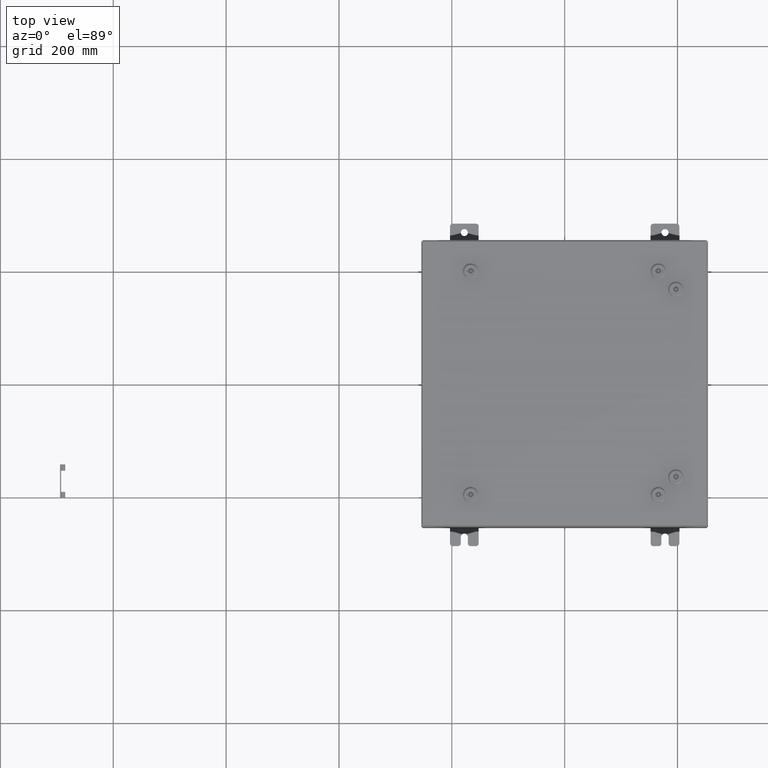
[diagram: clean part render]
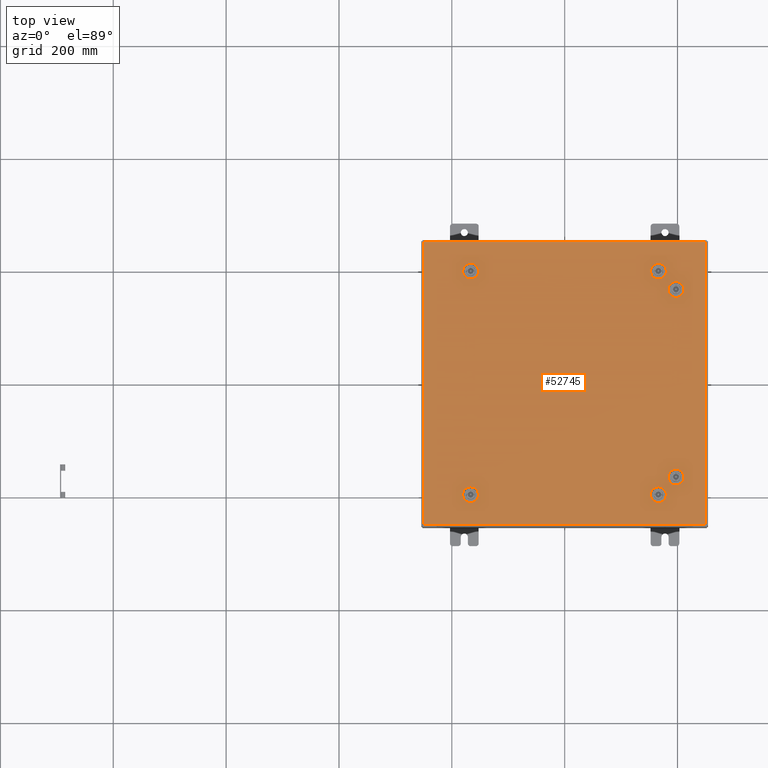
[diagram: same view with one face highlighted and labeled with its STEP entity id]
A machine part, top view. The second image highlights one B-rep face of the part: STEP entity #52745.
In plain terms, the highlighted planar face has unit normal (0, 0, -1).
Its self-contained STEP definition (entity closure, byte-faithful):
#550 = EDGE_LOOP ( 'NONE', ( #18528, #39874, #667, #50809, #45759 ) ) ;
#577 = EDGE_CURVE ( 'NONE', #19614, #15873, #11286, .T. ) ;
#667 = ORIENTED_EDGE ( 'NONE', *, *, #61241, .F. ) ;
#840 = CARTESIAN_POINT ( 'NONE',  ( 9.849799999999994800, 9.849799999999996600, -2.048885995248197400E-016 ) ) ;
#983 = ORIENTED_EDGE ( 'NONE', *, *, #1788, .F. ) ;
#1079 = DIRECTION ( 'NONE',  ( 1.000000000000000000, 1.369674334534793800E-014, 9.732121487607470400E-029 ) ) ;
#1146 = VECTOR ( 'NONE', #22110, 39.37007874015748100 ) ;
#1154 = CARTESIAN_POINT ( 'NONE',  ( 7.392800000000011800, 6.761952375267901200, 0.0000000000000000000 ) ) ;
#1192 = DIRECTION ( 'NONE',  ( 6.982962677686266700E-015, -0.0000000000000000000, 1.000000000000000000 ) ) ;
#1392 = DIRECTION ( 'NONE',  ( 1.000000000000000000, 0.0000000000000000000, 0.0000000000000000000 ) ) ;
#1431 = EDGE_LOOP ( 'NONE', ( #12379, #8941, #28252, #18994, #23804 ) ) ;
#1457 = CARTESIAN_POINT ( 'NONE',  ( 8.182800000000000300, 6.761952375267896700, 0.0000000000000000000 ) ) ;
#1596 = EDGE_CURVE ( 'NONE', #15831, #26861, #12755, .T. ) ;
#1742 = DIRECTION ( 'NONE',  ( 1.000000000000000000, 0.0000000000000000000, 6.982962677686261200E-015 ) ) ;
#1750 = DIRECTION ( 'NONE',  ( -0.0000000000000000000, -6.982962677686266700E-015, 1.000000000000000000 ) ) ;
#1788 = EDGE_CURVE ( 'NONE', #17818, #15868, #8171, .T. ) ;
#1838 = LINE ( 'NONE', #60502, #50990 ) ;
#2163 = DIRECTION ( 'NONE',  ( -1.000000000000000000, -1.369674334534793800E-014, 6.982962677686269100E-015 ) ) ;
#2363 = DIRECTION ( 'NONE',  ( -8.218046007208852600E-015, 1.000000000000000000, -0.0000000000000000000 ) ) ;
#2509 = DIRECTION ( 'NONE',  ( -8.218046007208762600E-015, -1.000000000000000000, 0.0000000000000000000 ) ) ;
#2687 = CIRCLE ( 'NONE', #15769, 0.4424999999999983400 ) ;
#2768 = DIRECTION ( 'NONE',  ( -0.0000000000000000000, -6.982962677686266700E-015, 1.000000000000000000 ) ) ;
#2774 = CARTESIAN_POINT ( 'NONE',  ( -6.119999999999991200, -7.787799999999993600, -4.963978678686834100E-014 ) ) ;
#3140 = CARTESIAN_POINT ( 'NONE',  ( 6.761952375267871900, 7.392799999999994000, -2.777230659996697100E-014 ) ) ;
#3244 = VECTOR ( 'NONE', #1079, 39.37007874015748100 ) ;
#3359 = CIRCLE ( 'NONE', #46096, 0.4424999999999983400 ) ;
#3536 = AXIS2_PLACEMENT_3D ( 'NONE', #32168, #2768, #37117 ) ;
#3818 = CARTESIAN_POINT ( 'NONE',  ( 6.562499999999986700, -7.787799999999989200, -2.326024867937287700E-014 ) ) ;
#4097 = DIRECTION ( 'NONE',  ( 0.0000000000000000000, 1.000000000000000000, 6.982962677686269100E-015 ) ) ;
#4501 = DIRECTION ( 'NONE',  ( 0.0000000000000000000, 0.0000000000000000000, 1.000000000000000000 ) ) ;
#4707 = VERTEX_POINT ( 'NONE', #21259 ) ;
#4712 = DIRECTION ( 'NONE',  ( 1.000000000000000000, 0.0000000000000000000, 0.0000000000000000000 ) ) ;
#5268 = VECTOR ( 'NONE', #50499, 39.37007874015748100 ) ;
#6047 = DIRECTION ( 'NONE',  ( 0.0000000000000000000, 1.000000000000000000, 0.0000000000000000000 ) ) ;
#6318 = CIRCLE ( 'NONE', #45430, 0.4424999999999972800 ) ;
#6454 = CARTESIAN_POINT ( 'NONE',  ( 7.787800000000006100, -6.562500000000010700, -2.429631085186127400E-013 ) ) ;
#6600 = CARTESIAN_POINT ( 'NONE',  ( -6.363047624732095300, 8.182799999999980800, 0.0000000000000000000 ) ) ;
#7836 = FACE_BOUND ( 'NONE', #34544, .T. ) ;
#7850 = ORIENTED_EDGE ( 'NONE', *, *, #19387, .F. ) ;
#8067 = VERTEX_POINT ( 'NONE', #1154 ) ;
#8137 = LINE ( 'NONE', #61414, #45758 ) ;
#8171 = LINE ( 'NONE', #36509, #32777 ) ;
#8264 = CIRCLE ( 'NONE', #22289, 0.4424999999999983400 ) ;
#8572 = AXIS2_PLACEMENT_3D ( 'NONE', #45485, #16051, #50445 ) ;
#8635 = DIRECTION ( 'NONE',  ( 1.095739467627835000E-014, -1.000000000000000000, -6.982962677686248600E-015 ) ) ;
#8707 = DIRECTION ( 'NONE',  ( 1.000000000000000000, 0.0000000000000000000, 6.982962677686269100E-015 ) ) ;
#8779 = AXIS2_PLACEMENT_3D ( 'NONE', #30572, #1192, #35526 ) ;
#8823 = DIRECTION ( 'NONE',  ( 0.0000000000000000000, 0.0000000000000000000, 1.000000000000000000 ) ) ;
#8870 = EDGE_CURVE ( 'NONE', #4707, #53487, #55432, .T. ) ;
#8941 = ORIENTED_EDGE ( 'NONE', *, *, #49686, .F. ) ;
#9369 = FACE_BOUND ( 'NONE', #61823, .T. ) ;
#9448 = ORIENTED_EDGE ( 'NONE', *, *, #55067, .F. ) ;
#9674 = CARTESIAN_POINT ( 'NONE',  ( -6.363047624732104200, -7.392799999999997600, -4.688151652918229300E-014 ) ) ;
#9740 = EDGE_CURVE ( 'NONE', #30433, #57555, #61593, .T. ) ;
#9902 = DIRECTION ( 'NONE',  ( -1.000000000000000000, 2.739348669069610000E-015, 1.946424297521510000E-029 ) ) ;
#9929 = CARTESIAN_POINT ( 'NONE',  ( -6.363047624732101500, 7.392799999999993200, 0.0000000000000000000 ) ) ;
#10946 = EDGE_CURVE ( 'NONE', #23564, #48573, #29192, .T. ) ;
#10988 = LINE ( 'NONE', #52899, #35590 ) ;
#11096 = CARTESIAN_POINT ( 'NONE',  ( 7.787800000000006100, -6.562500000000010700, -2.429631085186127400E-013 ) ) ;
#11227 = ORIENTED_EDGE ( 'NONE', *, *, #577, .F. ) ;
#11250 = CIRCLE ( 'NONE', #8779, 0.4424999999999972800 ) ;
#11286 = CIRCLE ( 'NONE', #15975, 0.4424999999999983400 ) ;
#11350 = DIRECTION ( 'NONE',  ( 0.0000000000000000000, 1.000000000000000000, 6.982962677686287200E-015 ) ) ;
#11476 = CARTESIAN_POINT ( 'NONE',  ( -6.119999999999989400, 7.787799999999989200, 0.0000000000000000000 ) ) ;
#12379 = ORIENTED_EDGE ( 'NONE', *, *, #8870, .F. ) ;
#12610 = LINE ( 'NONE', #51591, #1146 ) ;
#12755 = LINE ( 'NONE', #50047, #14277 ) ;
#12908 = DIRECTION ( 'NONE',  ( 6.982962677686266700E-015, -0.0000000000000000000, 1.000000000000000000 ) ) ;
#13530 = CARTESIAN_POINT ( 'NONE',  ( 6.363047624732095300, 8.182799999999984300, -2.498676961502389700E-014 ) ) ;
#13628 = ORIENTED_EDGE ( 'NONE', *, *, #42868, .F. ) ;
#14126 = EDGE_LOOP ( 'NONE', ( #25882, #16630, #47608, #40071 ) ) ;
#14277 = VECTOR ( 'NONE', #6047, 39.37007874015748100 ) ;
#14331 = VERTEX_POINT ( 'NONE', #14966 ) ;
#14425 = CARTESIAN_POINT ( 'NONE',  ( 9.849799999999994800, 9.849799999999996600, -2.048885995248197400E-016 ) ) ;
#14445 = ORIENTED_EDGE ( 'NONE', *, *, #9740, .F. ) ;
#14575 = LINE ( 'NONE', #63306, #37715 ) ;
#14712 = ORIENTED_EDGE ( 'NONE', *, *, #43309, .F. ) ;
#14966 = CARTESIAN_POINT ( 'NONE',  ( 7.392800000000014500, -6.761952375267901200, -2.443558770110843000E-013 ) ) ;
#15153 = CIRCLE ( 'NONE', #44686, 0.4424999999999983400 ) ;
#15244 = CARTESIAN_POINT ( 'NONE',  ( -6.761952375267868300, 8.182799999999986100, 0.0000000000000000000 ) ) ;
#15763 = DIRECTION ( 'NONE',  ( 0.0000000000000000000, 0.0000000000000000000, -1.000000000000000000 ) ) ;
#15769 = AXIS2_PLACEMENT_3D ( 'NONE', #26201, #60622, #31154 ) ;
#15831 = VERTEX_POINT ( 'NONE', #28822 ) ;
#15868 = VERTEX_POINT ( 'NONE', #13530 ) ;
#15873 = VERTEX_POINT ( 'NONE', #18931 ) ;
#15975 = AXIS2_PLACEMENT_3D ( 'NONE', #60578, #31112, #1742 ) ;
#15990 = CARTESIAN_POINT ( 'NONE',  ( 0.0000000000000000000, 0.0000000000000000000, 0.0000000000000000000 ) ) ;
#16024 = DIRECTION ( 'NONE',  ( 0.0000000000000000000, 1.000000000000000000, 6.982962677686270700E-015 ) ) ;
#16031 = ORIENTED_EDGE ( 'NONE', *, *, #19478, .F. ) ;
#16051 = DIRECTION ( 'NONE',  ( 0.0000000000000000000, 0.0000000000000000000, 1.000000000000000000 ) ) ;
#16630 = ORIENTED_EDGE ( 'NONE', *, *, #1596, .T. ) ;
#17521 = VERTEX_POINT ( 'NONE', #22364 ) ;
#17818 = VERTEX_POINT ( 'NONE', #49206 ) ;
#18525 = CIRCLE ( 'NONE', #47525, 0.4424999999999972800 ) ;
#18528 = ORIENTED_EDGE ( 'NONE', *, *, #27327, .F. ) ;
#18931 = CARTESIAN_POINT ( 'NONE',  ( 6.761952375267871900, -7.392799999999992300, 0.0000000000000000000 ) ) ;
#18994 = ORIENTED_EDGE ( 'NONE', *, *, #26090, .F. ) ;
#19381 = CARTESIAN_POINT ( 'NONE',  ( 8.182800000000003800, -6.363047624732128100, -2.415703400261412200E-013 ) ) ;
#19387 = EDGE_CURVE ( 'NONE', #21494, #19614, #2687, .T. ) ;
#19478 = EDGE_CURVE ( 'NONE', #57555, #21494, #12610, .T. ) ;
#19549 = VERTEX_POINT ( 'NONE', #27504 ) ;
#19614 = VERTEX_POINT ( 'NONE', #37643 ) ;
#19993 = AXIS2_PLACEMENT_3D ( 'NONE', #11096, #45454, #16024 ) ;
#20174 = EDGE_CURVE ( 'NONE', #53487, #32719, #51027, .T. ) ;
#20838 = FACE_BOUND ( 'NONE', #51022, .T. ) ;
#21133 = DIRECTION ( 'NONE',  ( 8.218046007208852600E-015, 1.000000000000000000, 6.982962677686325100E-015 ) ) ;
#21259 = CARTESIAN_POINT ( 'NONE',  ( -6.761952375267870100, -8.182799999999991400, 0.0000000000000000000 ) ) ;
#21494 = VERTEX_POINT ( 'NONE', #37637 ) ;
#21756 = CARTESIAN_POINT ( 'NONE',  ( 7.392800000000011800, 6.761952375267901200, 0.0000000000000000000 ) ) ;
#22110 = DIRECTION ( 'NONE',  ( 1.000000000000000000, -1.369674334534793800E-014, 6.982962677686171300E-015 ) ) ;
#22289 = AXIS2_PLACEMENT_3D ( 'NONE', #42355, #12908, #47291 ) ;
#22364 = CARTESIAN_POINT ( 'NONE',  ( 7.392800000000008300, 6.363047624732128100, 0.0000000000000000000 ) ) ;
#22578 = CIRCLE ( 'NONE', #25947, 0.4424999999999983400 ) ;
#22806 = LINE ( 'NONE', #32231, #37466 ) ;
#23106 = LINE ( 'NONE', #14425, #60800 ) ;
#23564 = VERTEX_POINT ( 'NONE', #15244 ) ;
#23658 = EDGE_CURVE ( 'NONE', #44767, #61173, #41500, .T. ) ;
#23804 = ORIENTED_EDGE ( 'NONE', *, *, #20174, .F. ) ;
#24046 = LINE ( 'NONE', #58347, #37163 ) ;
#24052 = LINE ( 'NONE', #42985, #37171 ) ;
#24123 = ORIENTED_EDGE ( 'NONE', *, *, #33108, .F. ) ;
#24473 = CIRCLE ( 'NONE', #8572, 0.4424999999999972800 ) ;
#24837 = CIRCLE ( 'NONE', #38697, 0.4424999999999972800 ) ;
#25143 = EDGE_CURVE ( 'NONE', #40557, #34065, #24473, .T. ) ;
#25861 = DIRECTION ( 'NONE',  ( -1.000000000000000000, 0.0000000000000000000, -0.0000000000000000000 ) ) ;
#25882 = ORIENTED_EDGE ( 'NONE', *, *, #44905, .T. ) ;
#25947 = AXIS2_PLACEMENT_3D ( 'NONE', #31128, #1750, #36107 ) ;
#26090 = EDGE_CURVE ( 'NONE', #32719, #36574, #52130, .T. ) ;
#26201 = CARTESIAN_POINT ( 'NONE',  ( 6.562499999999986700, -7.787799999999989200, -2.326024867937287700E-014 ) ) ;
#26675 = CARTESIAN_POINT ( 'NONE',  ( 6.562499999999986700, 7.787799999999991800, -2.637953810749545800E-014 ) ) ;
#26861 = VERTEX_POINT ( 'NONE', #840 ) ;
#27018 = CARTESIAN_POINT ( 'NONE',  ( 6.363047624732101500, -7.392799999999993200, -2.189474691415834200E-014 ) ) ;
#27327 = EDGE_CURVE ( 'NONE', #48573, #49446, #22806, .T. ) ;
#27504 = CARTESIAN_POINT ( 'NONE',  ( 8.182800000000000300, -6.761952375267896700, -2.443558770110843000E-013 ) ) ;
#28252 = ORIENTED_EDGE ( 'NONE', *, *, #30007, .F. ) ;
#28443 = CARTESIAN_POINT ( 'NONE',  ( 7.392800000000010000, -6.363047624732128100, 0.0000000000000000000 ) ) ;
#28822 = CARTESIAN_POINT ( 'NONE',  ( 9.849799999999996600, -9.849800000000001900, -2.048885995248197400E-016 ) ) ;
#29192 = CIRCLE ( 'NONE', #29703, 0.4424999999999983400 ) ;
#29288 = DIRECTION ( 'NONE',  ( -1.000000000000000000, -0.0000000000000000000, -0.0000000000000000000 ) ) ;
#29703 = AXIS2_PLACEMENT_3D ( 'NONE', #33903, #4501, #38822 ) ;
#30007 = EDGE_CURVE ( 'NONE', #36574, #62847, #54279, .T. ) ;
#30069 = AXIS2_PLACEMENT_3D ( 'NONE', #3818, #38139, #8707 ) ;
#30433 = VERTEX_POINT ( 'NONE', #27018 ) ;
#30572 = CARTESIAN_POINT ( 'NONE',  ( 6.562499999999986700, 7.787799999999991800, -2.637953810749545800E-014 ) ) ;
#30776 = DIRECTION ( 'NONE',  ( 0.0000000000000000000, 0.0000000000000000000, 1.000000000000000000 ) ) ;
#30974 = CARTESIAN_POINT ( 'NONE',  ( -6.363047624732097100, -8.182799999999986100, -5.239805704455435800E-014 ) ) ;
#31112 = DIRECTION ( 'NONE',  ( -6.982962677686266700E-015, -6.982962677686266700E-015, 1.000000000000000000 ) ) ;
#31128 = CARTESIAN_POINT ( 'NONE',  ( -6.562499999999988500, -7.787799999999993600, -4.963978678686834100E-014 ) ) ;
#31154 = DIRECTION ( 'NONE',  ( 1.000000000000000000, 0.0000000000000000000, 6.982962677686261200E-015 ) ) ;
#31636 = DIRECTION ( 'NONE',  ( -1.000000000000000000, 0.0000000000000000000, 6.982962677686261200E-015 ) ) ;
#32168 = CARTESIAN_POINT ( 'NONE',  ( -6.562499999999988500, -7.787799999999993600, -4.963978678686834100E-014 ) ) ;
#32231 = CARTESIAN_POINT ( 'NONE',  ( -6.363047624732101500, 7.392799999999993200, 0.0000000000000000000 ) ) ;
#32435 = FACE_OUTER_BOUND ( 'NONE', #14126, .T. ) ;
#32719 = VERTEX_POINT ( 'NONE', #2774 ) ;
#32777 = VECTOR ( 'NONE', #2163, 39.37007874015748100 ) ;
#33108 = EDGE_CURVE ( 'NONE', #15873, #30433, #14575, .T. ) ;
#33482 = DIRECTION ( 'NONE',  ( -0.0000000000000000000, -6.982962677686266700E-015, 1.000000000000000000 ) ) ;
#33903 = CARTESIAN_POINT ( 'NONE',  ( -6.562499999999986700, 7.787799999999989200, 0.0000000000000000000 ) ) ;
#33981 = FACE_BOUND ( 'NONE', #1431, .T. ) ;
#34065 = VERTEX_POINT ( 'NONE', #6600 ) ;
#34114 = DIRECTION ( 'NONE',  ( 0.0000000000000000000, 0.0000000000000000000, 1.000000000000000000 ) ) ;
#34544 = EDGE_LOOP ( 'NONE', ( #36840, #40926, #9448, #13628 ) ) ;
#35418 = CARTESIAN_POINT ( 'NONE',  ( -6.363047624732097100, -8.182799999999986100, -5.239805704455435800E-014 ) ) ;
#35455 = LINE ( 'NONE', #21756, #60060 ) ;
#35526 = DIRECTION ( 'NONE',  ( -1.000000000000000000, 0.0000000000000000000, 6.982962677686269100E-015 ) ) ;
#35590 = VECTOR ( 'NONE', #43180, 39.37007874015748100 ) ;
#35871 = ORIENTED_EDGE ( 'NONE', *, *, #23658, .F. ) ;
#36107 = DIRECTION ( 'NONE',  ( 0.0000000000000000000, 1.000000000000000000, 6.982962677686270700E-015 ) ) ;
#36150 = CARTESIAN_POINT ( 'NONE',  ( 6.363047624732101500, 7.392799999999995800, -2.498676961502394800E-014 ) ) ;
#36509 = CARTESIAN_POINT ( 'NONE',  ( 6.363047624732095300, 8.182799999999984300, -2.498676961502389700E-014 ) ) ;
#36574 = VERTEX_POINT ( 'NONE', #59776 ) ;
#36600 = ORIENTED_EDGE ( 'NONE', *, *, #47000, .F. ) ;
#36747 = CARTESIAN_POINT ( 'NONE',  ( -9.849799999999996600, -9.849800000000001900, -2.048885995248197400E-016 ) ) ;
#36840 = ORIENTED_EDGE ( 'NONE', *, *, #47757, .F. ) ;
#37117 = DIRECTION ( 'NONE',  ( 0.0000000000000000000, 1.000000000000000000, 6.982962677686269100E-015 ) ) ;
#37153 = VERTEX_POINT ( 'NONE', #54394 ) ;
#37163 = VECTOR ( 'NONE', #63079, 39.37007874015748100 ) ;
#37171 = VECTOR ( 'NONE', #8635, 39.37007874015748100 ) ;
#37429 = CARTESIAN_POINT ( 'NONE',  ( 6.363047624732095300, -8.182799999999980800, -2.741128742953046100E-014 ) ) ;
#37466 = VECTOR ( 'NONE', #61676, 39.37007874015748100 ) ;
#37637 = CARTESIAN_POINT ( 'NONE',  ( 6.761952375267868300, -8.182799999999986100, -2.462575044458744400E-014 ) ) ;
#37643 = CARTESIAN_POINT ( 'NONE',  ( 7.004999999999984800, -7.787799999999989200, -2.017028769449671600E-014 ) ) ;
#37715 = VECTOR ( 'NONE', #48451, 39.37007874015748100 ) ;
#38006 = EDGE_CURVE ( 'NONE', #17521, #60613, #15153, .T. ) ;
#38139 = DIRECTION ( 'NONE',  ( -6.982962677686266700E-015, -6.982962677686266700E-015, 1.000000000000000000 ) ) ;
#38267 = CARTESIAN_POINT ( 'NONE',  ( 7.787800000000005200, 6.562500000000010700, 0.0000000000000000000 ) ) ;
#38697 = AXIS2_PLACEMENT_3D ( 'NONE', #60222, #30776, #1392 ) ;
#38822 = DIRECTION ( 'NONE',  ( 1.000000000000000000, 0.0000000000000000000, 0.0000000000000000000 ) ) ;
#39874 = ORIENTED_EDGE ( 'NONE', *, *, #10946, .F. ) ;
#40071 = ORIENTED_EDGE ( 'NONE', *, *, #43326, .T. ) ;
#40557 = VERTEX_POINT ( 'NONE', #11476 ) ;
#40790 = DIRECTION ( 'NONE',  ( -0.0000000000000000000, -6.982962677686266700E-015, 1.000000000000000000 ) ) ;
#40926 = ORIENTED_EDGE ( 'NONE', *, *, #38006, .F. ) ;
#41183 = VECTOR ( 'NONE', #9902, 39.37007874015748100 ) ;
#41500 = CIRCLE ( 'NONE', #19993, 0.4424999999999983400 ) ;
#42355 = CARTESIAN_POINT ( 'NONE',  ( 6.562499999999986700, 7.787799999999991800, -2.637953810749545800E-014 ) ) ;
#42868 = EDGE_CURVE ( 'NONE', #52759, #8067, #24837, .T. ) ;
#42985 = CARTESIAN_POINT ( 'NONE',  ( 7.392800000000014500, -6.761952375267901200, -2.443558770110843000E-013 ) ) ;
#43154 = DIRECTION ( 'NONE',  ( 1.000000000000000000, 0.0000000000000000000, 0.0000000000000000000 ) ) ;
#43180 = DIRECTION ( 'NONE',  ( 0.0000000000000000000, -1.000000000000000000, 0.0000000000000000000 ) ) ;
#43309 = EDGE_CURVE ( 'NONE', #61173, #14331, #24052, .T. ) ;
#43326 = EDGE_CURVE ( 'NONE', #37153, #51414, #10988, .T. ) ;
#43704 = EDGE_CURVE ( 'NONE', #54510, #17818, #3359, .T. ) ;
#43890 = VERTEX_POINT ( 'NONE', #3140 ) ;
#44395 = ORIENTED_EDGE ( 'NONE', *, *, #54254, .F. ) ;
#44405 = LINE ( 'NONE', #45526, #5268 ) ;
#44686 = AXIS2_PLACEMENT_3D ( 'NONE', #38267, #8823, #43154 ) ;
#44767 = VERTEX_POINT ( 'NONE', #19381 ) ;
#44905 = EDGE_CURVE ( 'NONE', #51414, #15831, #44405, .T. ) ;
#45430 = AXIS2_PLACEMENT_3D ( 'NONE', #6454, #40790, #11350 ) ;
#45437 = VECTOR ( 'NONE', #54425, 39.37007874015748100 ) ;
#45454 = DIRECTION ( 'NONE',  ( -0.0000000000000000000, -6.982962677686266700E-015, 1.000000000000000000 ) ) ;
#45456 = FACE_BOUND ( 'NONE', #550, .T. ) ;
#45485 = CARTESIAN_POINT ( 'NONE',  ( -6.562499999999986700, 7.787799999999989200, 0.0000000000000000000 ) ) ;
#45526 = CARTESIAN_POINT ( 'NONE',  ( -9.849799999999996600, -9.849800000000001900, -2.048885995248197400E-016 ) ) ;
#45645 = EDGE_LOOP ( 'NONE', ( #983, #57864, #63622, #62589, #36600 ) ) ;
#45758 = VECTOR ( 'NONE', #2363, 39.37007874015748100 ) ;
#45759 = ORIENTED_EDGE ( 'NONE', *, *, #54712, .F. ) ;
#45849 = EDGE_CURVE ( 'NONE', #43890, #54510, #8264, .T. ) ;
#46096 = AXIS2_PLACEMENT_3D ( 'NONE', #26675, #61086, #31636 ) ;
#47000 = EDGE_CURVE ( 'NONE', #15868, #63647, #11250, .T. ) ;
#47291 = DIRECTION ( 'NONE',  ( -1.000000000000000000, 0.0000000000000000000, 6.982962677686261200E-015 ) ) ;
#47525 = AXIS2_PLACEMENT_3D ( 'NONE', #63554, #34114, #4712 ) ;
#47608 = ORIENTED_EDGE ( 'NONE', *, *, #55529, .T. ) ;
#47757 = EDGE_CURVE ( 'NONE', #60613, #52759, #8137, .T. ) ;
#48451 = DIRECTION ( 'NONE',  ( -1.000000000000000000, -2.739348669069610000E-015, -6.982962677686276200E-015 ) ) ;
#48573 = VERTEX_POINT ( 'NONE', #51798 ) ;
#48908 = AXIS2_PLACEMENT_3D ( 'NONE', #62951, #33482, #4097 ) ;
#49206 = CARTESIAN_POINT ( 'NONE',  ( 6.761952375267868300, 8.182799999999989600, 0.0000000000000000000 ) ) ;
#49446 = VERTEX_POINT ( 'NONE', #9929 ) ;
#49686 = EDGE_CURVE ( 'NONE', #62847, #4707, #22578, .T. ) ;
#50047 = CARTESIAN_POINT ( 'NONE',  ( 9.849799999999996600, -9.849800000000001900, -2.048885995248197400E-016 ) ) ;
#50445 = DIRECTION ( 'NONE',  ( 1.000000000000000000, 0.0000000000000000000, 0.0000000000000000000 ) ) ;
#50499 = DIRECTION ( 'NONE',  ( 1.000000000000000000, -0.0000000000000000000, -0.0000000000000000000 ) ) ;
#50809 = ORIENTED_EDGE ( 'NONE', *, *, #25143, .F. ) ;
#50990 = VECTOR ( 'NONE', #21133, 39.37007874015748100 ) ;
#51022 = EDGE_LOOP ( 'NONE', ( #24123, #11227, #7850, #16031, #14445 ) ) ;
#51027 = CIRCLE ( 'NONE', #3536, 0.4424999999999972800 ) ;
#51414 = VERTEX_POINT ( 'NONE', #36747 ) ;
#51591 = CARTESIAN_POINT ( 'NONE',  ( 6.363047624732095300, -8.182799999999980800, -2.741128742953046100E-014 ) ) ;
#51798 = CARTESIAN_POINT ( 'NONE',  ( -6.761952375267871900, 7.392799999999992300, 0.0000000000000000000 ) ) ;
#52130 = CIRCLE ( 'NONE', #48908, 0.4424999999999972800 ) ;
#52196 = CARTESIAN_POINT ( 'NONE',  ( 7.004999999999984800, 7.787799999999991800, -2.946949909237162500E-014 ) ) ;
#52745 = ADVANCED_FACE ( 'NONE', ( #9369, #7836, #20838, #33981, #58579, #45456, #32435 ), #55319, .F. ) ;
#52759 = VERTEX_POINT ( 'NONE', #1457 ) ;
#52899 = CARTESIAN_POINT ( 'NONE',  ( -9.849800000000001900, 9.849799999999996600, -2.441589144337435400E-015 ) ) ;
#53487 = VERTEX_POINT ( 'NONE', #30974 ) ;
#54254 = EDGE_CURVE ( 'NONE', #14331, #19549, #6318, .T. ) ;
#54279 = LINE ( 'NONE', #9674, #41183 ) ;
#54394 = CARTESIAN_POINT ( 'NONE',  ( -9.849800000000001900, 9.849799999999996600, -2.441589144337435400E-015 ) ) ;
#54425 = DIRECTION ( 'NONE',  ( 1.000000000000000000, -2.739348669069610000E-015, -6.982962677686248600E-015 ) ) ;
#54507 = CARTESIAN_POINT ( 'NONE',  ( 8.182800000000003800, 6.363047624732128100, 0.0000000000000000000 ) ) ;
#54510 = VERTEX_POINT ( 'NONE', #52196 ) ;
#54712 = EDGE_CURVE ( 'NONE', #49446, #40557, #18525, .T. ) ;
#55067 = EDGE_CURVE ( 'NONE', #8067, #17521, #35455, .T. ) ;
#55185 = ORIENTED_EDGE ( 'NONE', *, *, #60769, .F. ) ;
#55319 = PLANE ( 'NONE',  #63550 ) ;
#55432 = LINE ( 'NONE', #35418, #3244 ) ;
#55529 = EDGE_CURVE ( 'NONE', #26861, #37153, #23106, .T. ) ;
#55971 = CARTESIAN_POINT ( 'NONE',  ( -6.761952375267873600, -7.392799999999996700, -4.688151652918228700E-014 ) ) ;
#57555 = VERTEX_POINT ( 'NONE', #37429 ) ;
#57864 = ORIENTED_EDGE ( 'NONE', *, *, #43704, .F. ) ;
#58347 = CARTESIAN_POINT ( 'NONE',  ( -6.363047624732095300, 8.182799999999980800, 0.0000000000000000000 ) ) ;
#58558 = LINE ( 'NONE', #59377, #45437 ) ;
#58579 = FACE_BOUND ( 'NONE', #45645, .T. ) ;
#59377 = CARTESIAN_POINT ( 'NONE',  ( 6.363047624732101500, 7.392799999999995800, -2.498676961502394800E-014 ) ) ;
#59776 = CARTESIAN_POINT ( 'NONE',  ( -6.363047624732104200, -7.392799999999997600, -4.688151652918229300E-014 ) ) ;
#60060 = VECTOR ( 'NONE', #2509, 39.37007874015748100 ) ;
#60222 = CARTESIAN_POINT ( 'NONE',  ( 7.787800000000005200, 6.562500000000010700, 0.0000000000000000000 ) ) ;
#60502 = CARTESIAN_POINT ( 'NONE',  ( 8.182800000000000300, -6.761952375267896700, -2.443558770110843000E-013 ) ) ;
#60578 = CARTESIAN_POINT ( 'NONE',  ( 6.562499999999986700, -7.787799999999989200, -2.326024867937287700E-014 ) ) ;
#60613 = VERTEX_POINT ( 'NONE', #54507 ) ;
#60622 = DIRECTION ( 'NONE',  ( -6.982962677686266700E-015, -6.982962677686266700E-015, 1.000000000000000000 ) ) ;
#60769 = EDGE_CURVE ( 'NONE', #19549, #44767, #1838, .T. ) ;
#60800 = VECTOR ( 'NONE', #29288, 39.37007874015748100 ) ;
#61086 = DIRECTION ( 'NONE',  ( 6.982962677686266700E-015, -0.0000000000000000000, 1.000000000000000000 ) ) ;
#61173 = VERTEX_POINT ( 'NONE', #28443 ) ;
#61241 = EDGE_CURVE ( 'NONE', #34065, #23564, #24046, .T. ) ;
#61414 = CARTESIAN_POINT ( 'NONE',  ( 8.182800000000000300, 6.761952375267896700, 0.0000000000000000000 ) ) ;
#61593 = CIRCLE ( 'NONE', #30069, 0.4424999999999972800 ) ;
#61676 = DIRECTION ( 'NONE',  ( 1.000000000000000000, 2.739348669069610000E-015, -0.0000000000000000000 ) ) ;
#61823 = EDGE_LOOP ( 'NONE', ( #14712, #35871, #55185, #44395 ) ) ;
#62589 = ORIENTED_EDGE ( 'NONE', *, *, #63403, .F. ) ;
#62847 = VERTEX_POINT ( 'NONE', #55971 ) ;
#62951 = CARTESIAN_POINT ( 'NONE',  ( -6.562499999999988500, -7.787799999999993600, -4.963978678686834100E-014 ) ) ;
#63079 = DIRECTION ( 'NONE',  ( -1.000000000000000000, 1.369674334534793800E-014, 0.0000000000000000000 ) ) ;
#63306 = CARTESIAN_POINT ( 'NONE',  ( 6.363047624732101500, -7.392799999999993200, -2.189474691415834200E-014 ) ) ;
#63403 = EDGE_CURVE ( 'NONE', #63647, #43890, #58558, .T. ) ;
#63550 = AXIS2_PLACEMENT_3D ( 'NONE', #15990, #15763, #25861 ) ;
#63554 = CARTESIAN_POINT ( 'NONE',  ( -6.562499999999986700, 7.787799999999989200, 0.0000000000000000000 ) ) ;
#63622 = ORIENTED_EDGE ( 'NONE', *, *, #45849, .F. ) ;
#63647 = VERTEX_POINT ( 'NONE', #36150 ) ;